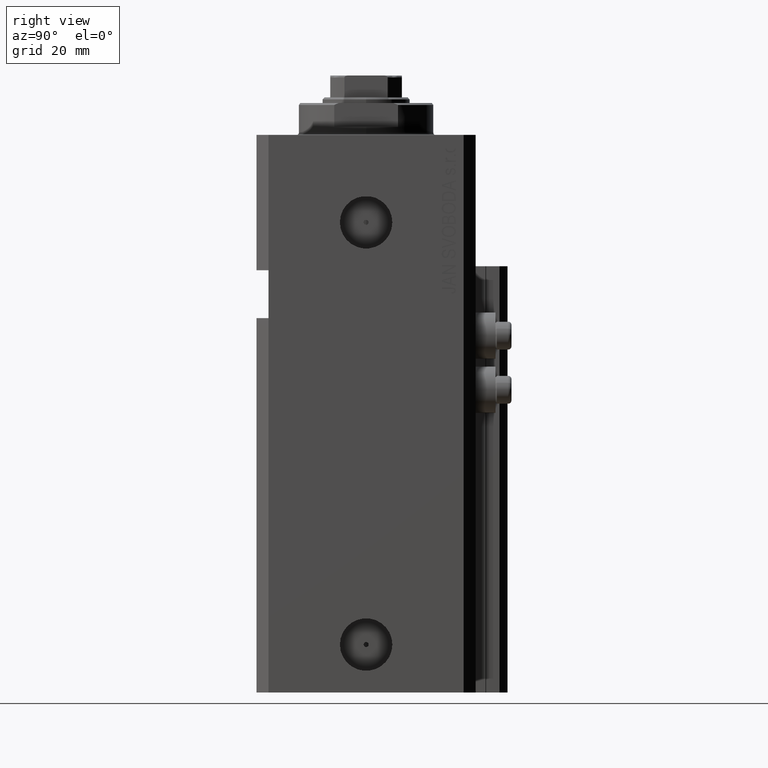
[diagram: clean part render]
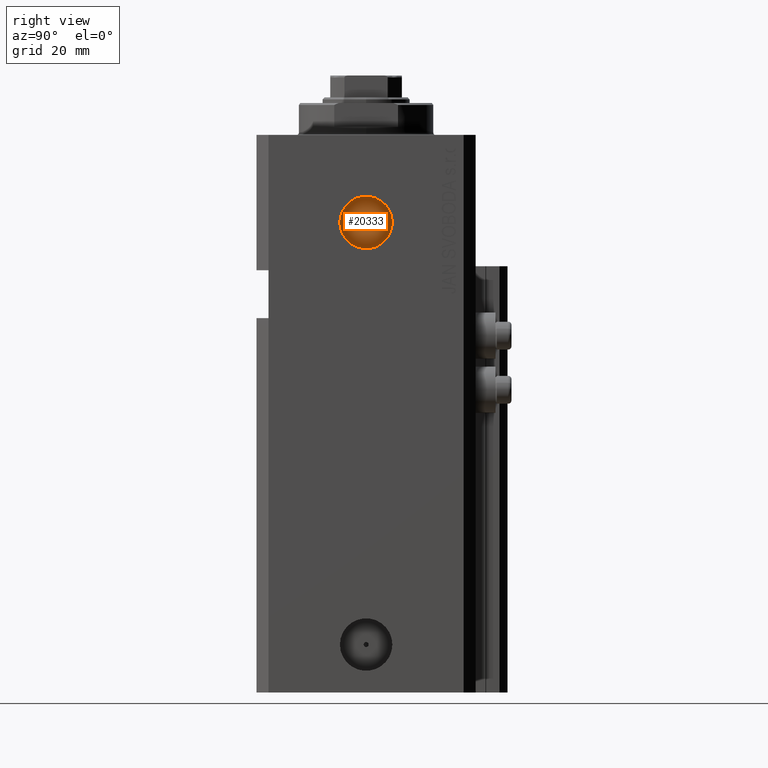
[diagram: same view with one face highlighted and labeled with its STEP entity id]
A machine part, right view. The second image highlights one B-rep face of the part: STEP entity #20333.
In plain terms, the highlighted planar face has unit normal (1, -0, 0).
Its self-contained STEP definition (entity closure, byte-faithful):
#377 = CARTESIAN_POINT ( 'NONE',  ( 24.40000000000025437, -3.255942524141206186E-13, -22.00000000000000000 ) ) ;
#1999 = ORIENTED_EDGE ( 'NONE', *, *, #44622, .F. ) ;
#2796 = CARTESIAN_POINT ( 'NONE',  ( 24.40000000000025437, -3.255942524141206186E-13, -22.00000000000000000 ) ) ;
#4195 = DIRECTION ( 'NONE',  ( 1.000000000000000000, -1.334402673828349134E-14, 0.000000000000000000 ) ) ;
#4579 = AXIS2_PLACEMENT_3D ( 'NONE', #23041, #12252, #41440 ) ;
#4884 = EDGE_CURVE ( 'NONE', #28273, #10822, #30817, .T. ) ;
#6095 = CARTESIAN_POINT ( 'NONE',  ( 24.40000000000016911, -6.580000000000327809, -22.00000000000000000 ) ) ;
#10822 = VERTEX_POINT ( 'NONE', #21234 ) ;
#10922 = DIRECTION ( 'NONE',  ( 1.318178933113074700E-14, 1.000000000000000000, 0.000000000000000000 ) ) ;
#12252 = DIRECTION ( 'NONE',  ( 1.000000000000000000, -1.334402673828349134E-14, 0.000000000000000000 ) ) ;
#13191 = ORIENTED_EDGE ( 'NONE', *, *, #4884, .T. ) ;
#13581 = FACE_OUTER_BOUND ( 'NONE', #35952, .T. ) ;
#14298 = DIRECTION ( 'NONE',  ( 1.000000000000000000, -1.334402673828349134E-14, 0.000000000000000000 ) ) ;
#14481 = CIRCLE ( 'NONE', #41218, 0.6249999999999987788 ) ;
#14526 = DIRECTION ( 'NONE',  ( 1.334402673828349134E-14, 1.000000000000000000, 0.000000000000000000 ) ) ;
#15914 = CARTESIAN_POINT ( 'NONE',  ( 24.40000000000026148, 0.6249999999996732614, -22.00000000000000000 ) ) ;
#17663 = ORIENTED_EDGE ( 'NONE', *, *, #46045, .F. ) ;
#19529 = AXIS2_PLACEMENT_3D ( 'NONE', #2796, #14298, #10922 ) ;
#20333 = ADVANCED_FACE ( 'NONE', ( #31752, #13581 ), #28177, .T. ) ;
#21234 = CARTESIAN_POINT ( 'NONE',  ( 24.40000000000034319, 6.579999999999677662, -22.00000000000000000 ) ) ;
#23041 = CARTESIAN_POINT ( 'NONE',  ( 24.40000000000025437, -3.255942524141206186E-13, -22.00000000000000000 ) ) ;
#24203 = CARTESIAN_POINT ( 'NONE',  ( 24.40000000000025437, -3.255942524141206186E-13, -22.00000000000000000 ) ) ;
#24425 = DIRECTION ( 'NONE',  ( 1.318178933113074700E-14, 1.000000000000000000, 0.000000000000000000 ) ) ;
#24440 = EDGE_CURVE ( 'NONE', #10822, #28273, #41688, .T. ) ;
#25361 = VERTEX_POINT ( 'NONE', #36090 ) ;
#28177 = PLANE ( 'NONE',  #43966 ) ;
#28273 = VERTEX_POINT ( 'NONE', #6095 ) ;
#30817 = CIRCLE ( 'NONE', #43825, 6.580000000000002736 ) ;
#31752 = FACE_BOUND ( 'NONE', #42911, .T. ) ;
#34378 = CIRCLE ( 'NONE', #4579, 0.6249999999999987788 ) ;
#35168 = CARTESIAN_POINT ( 'NONE',  ( 24.40000000000025437, -3.255942524141206186E-13, -22.00000000000000000 ) ) ;
#35952 = EDGE_LOOP ( 'NONE', ( #41321, #13191 ) ) ;
#36090 = CARTESIAN_POINT ( 'NONE',  ( 24.40000000000024727, -0.6250000000003244072, -22.00000000000000000 ) ) ;
#38778 = DIRECTION ( 'NONE',  ( 1.110223024625158749E-14, 1.000000000000000000, 0.000000000000000000 ) ) ;
#39014 = DIRECTION ( 'NONE',  ( 1.000000000000000000, -1.334402673828349134E-14, 0.000000000000000000 ) ) ;
#41218 = AXIS2_PLACEMENT_3D ( 'NONE', #24203, #39014, #38778 ) ;
#41321 = ORIENTED_EDGE ( 'NONE', *, *, #24440, .T. ) ;
#41440 = DIRECTION ( 'NONE',  ( 1.110223024625158749E-14, 1.000000000000000000, 0.000000000000000000 ) ) ;
#41688 = CIRCLE ( 'NONE', #19529, 6.580000000000002736 ) ;
#42367 = DIRECTION ( 'NONE',  ( 1.000000000000000000, -1.334402673828349134E-14, 0.000000000000000000 ) ) ;
#42911 = EDGE_LOOP ( 'NONE', ( #1999, #17663 ) ) ;
#43825 = AXIS2_PLACEMENT_3D ( 'NONE', #35168, #42367, #24425 ) ;
#43966 = AXIS2_PLACEMENT_3D ( 'NONE', #377, #4195, #14526 ) ;
#44622 = EDGE_CURVE ( 'NONE', #46472, #25361, #14481, .T. ) ;
#46045 = EDGE_CURVE ( 'NONE', #25361, #46472, #34378, .T. ) ;
#46472 = VERTEX_POINT ( 'NONE', #15914 ) ;